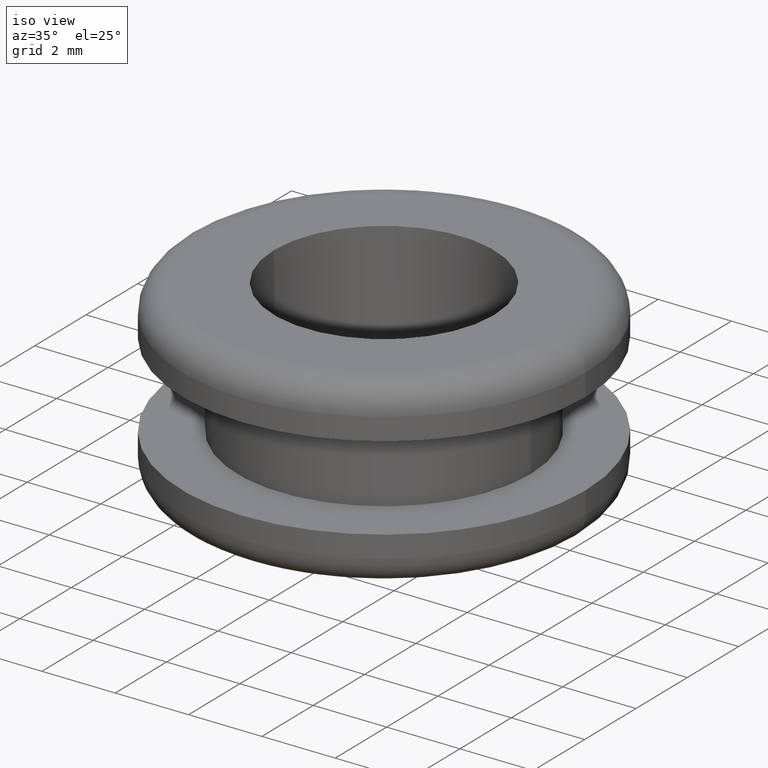
[diagram: clean part render]
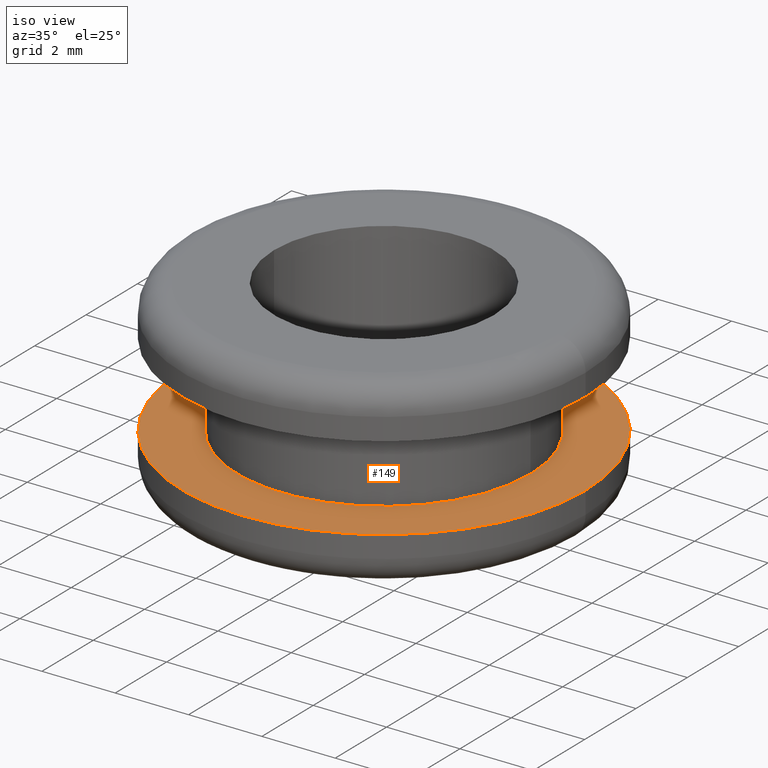
[diagram: same view with one face highlighted and labeled with its STEP entity id]
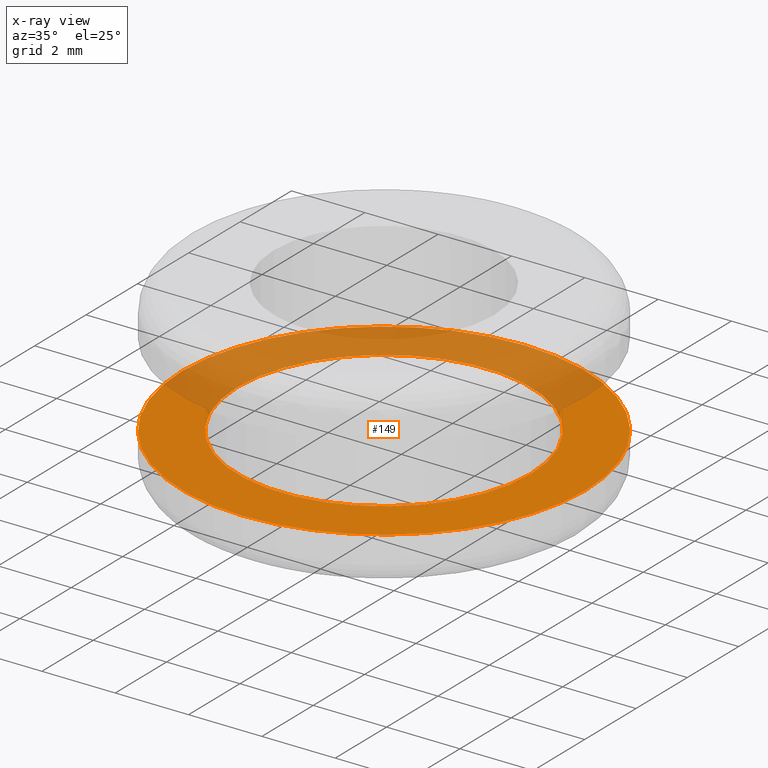
[diagram: x-ray of the same camera — body ghosted, the highlighted face saturated]
A machine part, iso view. The second image highlights one B-rep face of the part: STEP entity #149.
The next image is the same camera in x-ray: the body ghosted, the highlighted face saturated — about 38% of this face is hidden behind the body in this view.
In plain terms, the highlighted planar face has unit normal (0, 0, 1).
Its self-contained STEP definition (entity closure, byte-faithful):
#14 = ORIENTED_EDGE ( 'NONE', *, *, #432, .T. ) ;
#32 = CARTESIAN_POINT ( 'NONE',  ( 108.9281270167014100, 0.0000000000000000000, 134.9334774696090200 ) ) ;
#40 = FACE_OUTER_BOUND ( 'NONE', #116, .T. ) ;
#45 = EDGE_CURVE ( 'NONE', #427, #403, #165, .T. ) ;
#54 = CARTESIAN_POINT ( 'NONE',  ( 108.9281270167014100, 0.0000000000000000000, 134.9334774696090200 ) ) ;
#66 = CARTESIAN_POINT ( 'NONE',  ( 104.9281270166740100, 0.0000000000000000000, 134.9334774696090200 ) ) ;
#88 = CARTESIAN_POINT ( 'NONE',  ( 114.4281270167289900, 0.0000000000000000000, 134.9334774696090200 ) ) ;
#95 = DIRECTION ( 'NONE',  ( -1.000000000000000000, 0.0000000000000000000, 0.0000000000000000000 ) ) ;
#102 = AXIS2_PLACEMENT_3D ( 'NONE', #88, #166, #361 ) ;
#116 = EDGE_LOOP ( 'NONE', ( #348, #185 ) ) ;
#149 = ADVANCED_FACE ( 'NONE', ( #414, #40 ), #438, .T. ) ;
#152 = CIRCLE ( 'NONE', #186, 4.000000000027398500 ) ;
#165 = CIRCLE ( 'NONE', #243, 4.000000000027398500 ) ;
#166 = DIRECTION ( 'NONE',  ( 0.0000000000000000000, 0.0000000000000000000, 1.000000000000000000 ) ) ;
#185 = ORIENTED_EDGE ( 'NONE', *, *, #478, .F. ) ;
#186 = AXIS2_PLACEMENT_3D ( 'NONE', #206, #200, #388 ) ;
#187 = CIRCLE ( 'NONE', #352, 5.500000000027399400 ) ;
#200 = DIRECTION ( 'NONE',  ( 0.0000000000000000000, 0.0000000000000000000, -1.000000000000000000 ) ) ;
#206 = CARTESIAN_POINT ( 'NONE',  ( 108.9281270167014100, 0.0000000000000000000, 134.9334774696090200 ) ) ;
#233 = CARTESIAN_POINT ( 'NONE',  ( 112.9281270167288100, 4.898587196622970000E-016, 134.9334774696090200 ) ) ;
#243 = AXIS2_PLACEMENT_3D ( 'NONE', #54, #310, #95 ) ;
#247 = CARTESIAN_POINT ( 'NONE',  ( 114.4281270167288100, 6.735557395344025800E-016, 134.9334774696090200 ) ) ;
#260 = VERTEX_POINT ( 'NONE', #405 ) ;
#268 = VERTEX_POINT ( 'NONE', #247 ) ;
#273 = DIRECTION ( 'NONE',  ( -1.000000000000000000, 0.0000000000000000000, 0.0000000000000000000 ) ) ;
#300 = CIRCLE ( 'NONE', #302, 5.500000000027399400 ) ;
#302 = AXIS2_PLACEMENT_3D ( 'NONE', #32, #459, #425 ) ;
#310 = DIRECTION ( 'NONE',  ( 0.0000000000000000000, 0.0000000000000000000, -1.000000000000000000 ) ) ;
#327 = DIRECTION ( 'NONE',  ( 0.0000000000000000000, 0.0000000000000000000, -1.000000000000000000 ) ) ;
#339 = CARTESIAN_POINT ( 'NONE',  ( 108.9281270167014100, 0.0000000000000000000, 134.9334774696090200 ) ) ;
#348 = ORIENTED_EDGE ( 'NONE', *, *, #457, .F. ) ;
#352 = AXIS2_PLACEMENT_3D ( 'NONE', #339, #327, #273 ) ;
#361 = DIRECTION ( 'NONE',  ( 1.000000000000000000, 0.0000000000000000000, 0.0000000000000000000 ) ) ;
#370 = EDGE_LOOP ( 'NONE', ( #14, #433 ) ) ;
#388 = DIRECTION ( 'NONE',  ( -1.000000000000000000, 0.0000000000000000000, 0.0000000000000000000 ) ) ;
#403 = VERTEX_POINT ( 'NONE', #66 ) ;
#405 = CARTESIAN_POINT ( 'NONE',  ( 103.4281270166740000, 0.0000000000000000000, 134.9334774696090200 ) ) ;
#414 = FACE_BOUND ( 'NONE', #370, .T. ) ;
#425 = DIRECTION ( 'NONE',  ( -1.000000000000000000, 0.0000000000000000000, 0.0000000000000000000 ) ) ;
#427 = VERTEX_POINT ( 'NONE', #233 ) ;
#432 = EDGE_CURVE ( 'NONE', #403, #427, #152, .T. ) ;
#433 = ORIENTED_EDGE ( 'NONE', *, *, #45, .T. ) ;
#438 = PLANE ( 'NONE',  #102 ) ;
#457 = EDGE_CURVE ( 'NONE', #260, #268, #300, .T. ) ;
#459 = DIRECTION ( 'NONE',  ( 0.0000000000000000000, 0.0000000000000000000, -1.000000000000000000 ) ) ;
#478 = EDGE_CURVE ( 'NONE', #268, #260, #187, .T. ) ;